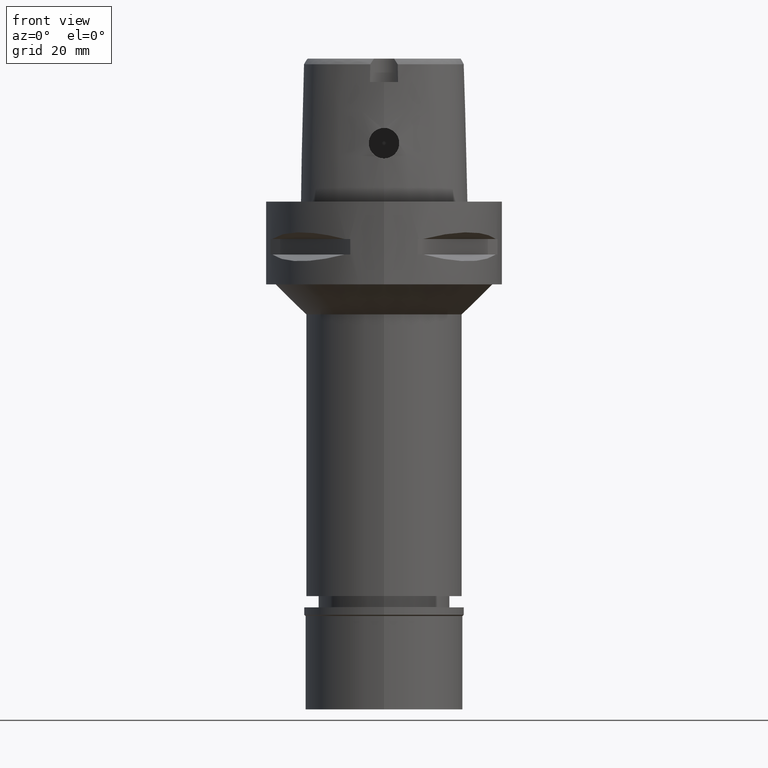
[diagram: clean part render]
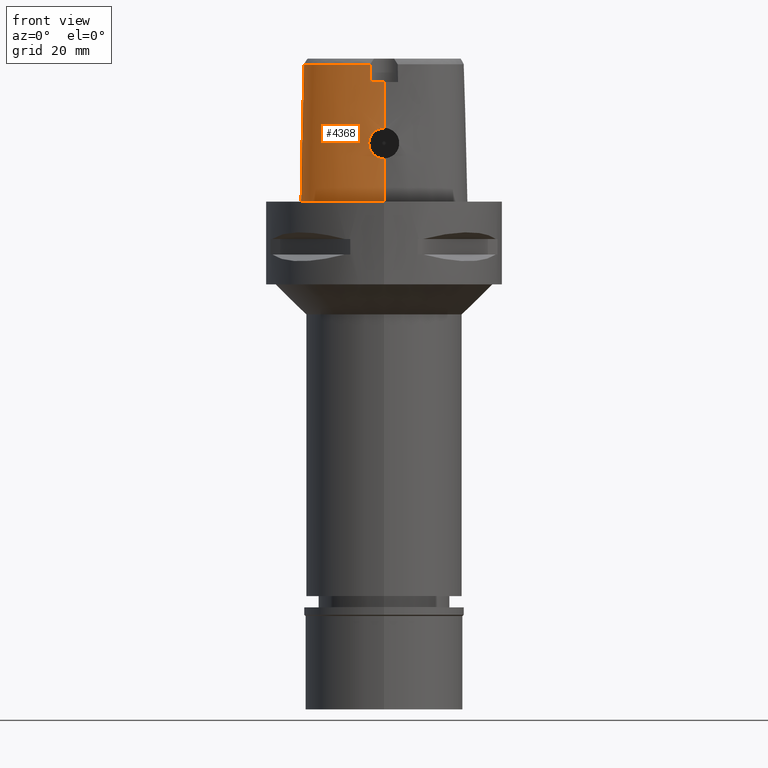
[diagram: same view with one face highlighted and labeled with its STEP entity id]
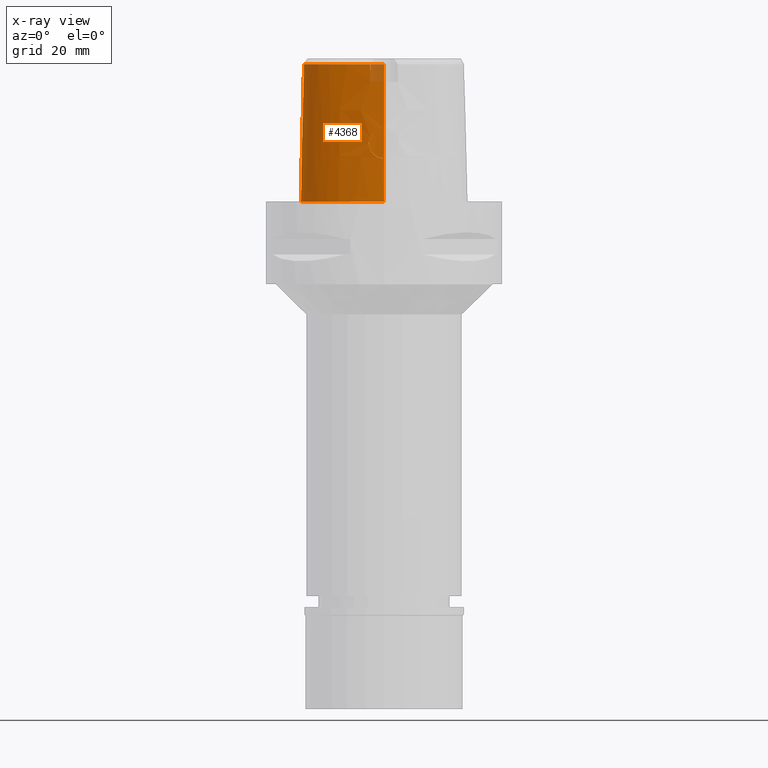
[diagram: x-ray of the same camera — body ghosted, the highlighted face saturated]
A machine part, front view. The second image highlights one B-rep face of the part: STEP entity #4368.
The next image is the same camera in x-ray: the body ghosted, the highlighted face saturated — about 2% of this face is hidden behind the body in this view.
In plain terms, the highlighted face is a freeform B-spline surface patch.
Its self-contained STEP definition (entity closure, byte-faithful):
#25 = EDGE_CURVE ( 'NONE', #266, #937, #47, .T. ) ;
#27 = CARTESIAN_POINT ( 'NONE',  ( -3.215358272887882674, -20.20174660046962600, 13.03391498473814103 ) ) ;
#34 = CARTESIAN_POINT ( 'NONE',  ( 0.6850314002073000230, 22.83959031590000066, 24.59140867373000106 ) ) ;
#38 = CARTESIAN_POINT ( 'NONE',  ( -19.55745547455899214, -11.29150218116220117, 36.52186244848005714 ) ) ;
#46 = CARTESIAN_POINT ( 'NONE',  ( -2.857836109606428199, -20.09902107152585060, 18.36973246307252339 ) ) ;
#47 = B_SPLINE_CURVE_WITH_KNOTS ( 'NONE', 3,
 ( #3482, #2371, #3885, #3111 ),
 .UNSPECIFIED., .F., .F.,
 ( 4, 4 ),
 ( 0.0000000000000000000, 1.000000000000000000 ),
 .UNSPECIFIED. ) ;
#56 = CARTESIAN_POINT ( 'NONE',  ( 0.4441906924275000335, 22.53710754767000068, 37.25233195128999597 ) ) ;
#73 = CARTESIAN_POINT ( 'NONE',  ( -3.724287987559095292, -20.04899117660409757, 17.09139312267861754 ) ) ;
#85 = EDGE_LOOP ( 'NONE', ( #3730, #1971, #912, #466, #2006, #4892, #4291, #3056 ) ) ;
#90 = CARTESIAN_POINT ( 'NONE',  ( -13.70645028111559149, 15.04851272300273735, 36.52186244848005714 ) ) ;
#102 = CARTESIAN_POINT ( 'NONE',  ( -4.001055636210809396, -20.04208398455349638, 16.14154222857777299 ) ) ;
#108 = CARTESIAN_POINT ( 'NONE',  ( -10.34823227286000069, 18.70095486602000179, 24.59140867373000106 ) ) ;
#125 = CARTESIAN_POINT ( 'NONE',  ( -3.377353639916688355, -20.18061854612784956, 13.26476903757044568 ) ) ;
#131 = CARTESIAN_POINT ( 'NONE',  ( -21.68301094094000092, -0.3332744160554000357, 11.93048539615999992 ) ) ;
#164 = CARTESIAN_POINT ( 'NONE',  ( -20.94844326328000150, -10.61175397205000159, -0.7304378813977999707 ) ) ;
#188 = CARTESIAN_POINT ( 'NONE',  ( -19.86834400796999844, 4.339653558540000233, 37.25233195128999597 ) ) ;
#191 = CARTESIAN_POINT ( 'NONE',  ( -22.24453907477161252, -4.100468750021825315, 1.504619045729436305E-07 ) ) ;
#209 = CARTESIAN_POINT ( 'NONE',  ( -6.344715577592999978, -20.31619965466000011, -0.7304378813977999707 ) ) ;
#215 = LINE ( 'NONE', #607, #3267 ) ;
#266 = VERTEX_POINT ( 'NONE', #1766 ) ;
#282 = CARTESIAN_POINT ( 'NONE',  ( 0.6718639799920999023, -20.05378872973999904, 24.59140867373000106 ) ) ;
#295 = CARTESIAN_POINT ( 'NONE',  ( 2.041042029990999821E-08, -19.88004246002000031, 31.80000004972000127 ) ) ;
#306 = CARTESIAN_POINT ( 'NONE',  ( -2.696415149899703767, -20.10825975497923324, 18.52316981035091104 ) ) ;
#307 = CARTESIAN_POINT ( 'NONE',  ( -6.175998541757000027, -19.37631761239999761, 37.25233195128999597 ) ) ;
#331 = CARTESIAN_POINT ( 'NONE',  ( 0.0000000000000000000, -20.18628283968999781, 19.55000000000000071 ) ) ;
#389 = CARTESIAN_POINT ( 'NONE',  ( 0.7042335228124000368, 23.15549812381000194, 11.93048539615999992 ) ) ;
#403 = CARTESIAN_POINT ( 'NONE',  ( -3.788010122578853611, -20.11815763408451829, 14.06624340821270280 ) ) ;
#412 = CARTESIAN_POINT ( 'NONE',  ( 0.4569144469324000202, 22.85341776083999932, 24.59140867373000106 ) ) ;
#417 = CARTESIAN_POINT ( 'NONE',  ( -4.467522189395946697, -19.48130287050814857, 36.52186244848005714 ) ) ;
#427 = CARTESIAN_POINT ( 'NONE',  ( -3.704467467890588228, -20.04996865237292880, 17.13733399074683916 ) ) ;
#446 = CARTESIAN_POINT ( 'NONE',  ( -4.027530768679777218, -20.06783249596160346, 14.99855479655601442 ) ) ;
#455 = CARTESIAN_POINT ( 'NONE',  ( -4.987110639121000055, 22.24795273492999925, 11.93048539615999992 ) ) ;
#466 = ORIENTED_EDGE ( 'NONE', *, *, #4238, .T. ) ;
#472 = CARTESIAN_POINT ( 'NONE',  ( -3.646271025386284226, -20.14180172674242897, 13.73229968810705515 ) ) ;
#488 = B_SPLINE_SURFACE_WITH_KNOTS ( 'NONE', 3, 3, ( 
 ( #4187, #389, #34, #4210 ),
 ( #2767, #2355, #412, #56 ),
 ( #1558, #4667, #2747, #4255 ),
 ( #2021, #824, #1997, #2380 ),
 ( #3894, #455, #3144, #1227 ),
 ( #2405, #3918, #3270, #3170 ),
 ( #4326, #4348, #108, #2892 ),
 ( #2794, #4301, #952, #1663 ),
 ( #4759, #3194, #530, #2144 ),
 ( #2452, #901, #4786, #188 ),
 ( #1332, #131, #922, #2476 ),
 ( #4038, #2867, #2822, #3624 ),
 ( #3991, #4402, #554, #1354 ),
 ( #2118, #983, #1283, #4377 ),
 ( #164, #578, #2523, #1637 ),
 ( #1259, #3572, #879, #4693 ),
 ( #3940, #600, #1715, #4715 ),
 ( #2433, #507, #2042, #1690 ),
 ( #3220, #3961, #2068, #3598 ),
 ( #2093, #4739, #1308, #2842 ),
 ( #3244, #2500, #4014, #3648 ),
 ( #209, #1736, #4426, #307 ),
 ( #2219, #1033, #1060, #4814 ),
 ( #1836, #4088, #3375, #1476 ),
 ( #624, #3773, #282, #3675 ) ),
 .UNSPECIFIED., .F., .F., .F.,
 ( 4, 1, 1, 1, 1, 1, 1, 1, 1, 1, 1, 1, 1, 1, 1, 1, 1, 1, 1, 1, 1, 1, 4 ),
 ( 4, 4 ),
 ( -0.01173777939045999967, 0.0000000000000000000, 0.04166666666736999758, 0.08333333333399001175, 0.1250000000005999923, 0.1666666666673000119, 0.2500000000004999889, 0.3333333333337000215, 0.4166666666670000296, 0.5000000000002999823, 0.5416666666668999985, 0.5833333333335000148, 0.6250000000001000311, 0.6458333333333999837, 0.6666666666667999674, 0.6875000000001000311, 0.7083333333333000637, 0.7500000000000000000, 0.7916666666667000474, 0.8333333333332000326, 0.9166666666664999852, 1.000000000000000000, 1.008985696609000060 ),
 ( -3.919420003828000068E-09, 1.000000199890000108 ),
 .UNSPECIFIED. ) ;
#499 = CARTESIAN_POINT ( 'NONE',  ( -4.049663826248562692, -20.05088590020228168, 15.56119206774791230 ) ) ;
#507 = CARTESIAN_POINT ( 'NONE',  ( -18.35112148866999959, -13.96357030862000137, 11.93048539615999992 ) ) ;
#530 = CARTESIAN_POINT ( 'NONE',  ( -17.53318564118000111, 10.12278921955000044, 24.59140867373000106 ) ) ;
#532 = CARTESIAN_POINT ( 'NONE',  ( -5.098437015879191847, 22.52602538712171309, 1.504619045729436305E-07 ) ) ;
#554 = CARTESIAN_POINT ( 'NONE',  ( -21.44619279530000000, -6.759806531063999202, 24.59140867373000106 ) ) ;
#556 = CARTESIAN_POINT ( 'NONE',  ( -21.97832647413867235, -0.2810937506581301926, 1.504619045729436305E-07 ) ) ;
#578 = CARTESIAN_POINT ( 'NONE',  ( -20.65879041645999692, -10.48283616500000015, 11.93048539615999992 ) ) ;
#600 = CARTESIAN_POINT ( 'NONE',  ( -19.40779762726999991, -12.64961922982999987, 11.93048539615999992 ) ) ;
#607 = CARTESIAN_POINT ( 'NONE',  ( -1.721531780973000088E-11, 22.56201468012000078, 36.52186680743999858 ) ) ;
#618 = CARTESIAN_POINT ( 'NONE',  ( -0.5047993661888190431, -20.38876923348000147, 11.44999999999999929 ) ) ;
#624 = CARTESIAN_POINT ( 'NONE',  ( 0.6840430854536001526, -20.68668155490999894, -0.7304378813977999707 ) ) ;
#629 = CARTESIAN_POINT ( 'NONE',  ( -3.736722311398999796, -19.67781602443999844, 31.80000000000000071 ) ) ;
#630 = B_SPLINE_CURVE_WITH_KNOTS ( 'NONE', 3,
 ( #295, #2609, #4191, #1874 ),
 .UNSPECIFIED., .F., .F.,
 ( 4, 4 ),
 ( 0.0000000000000000000, 1.000000000000000000 ),
 .UNSPECIFIED. ) ;
#675 = CARTESIAN_POINT ( 'NONE',  ( -2.095753548414855505, -20.13818364214428414, 18.96577014705866304 ) ) ;
#731 = EDGE_CURVE ( 'NONE', #1554, #3645, #2927, .T. ) ;
#755 = CARTESIAN_POINT ( 'NONE',  ( -10.15538788053377672, 18.47129535094281749, 36.52186244848005714 ) ) ;
#767 = CARTESIAN_POINT ( 'NONE',  ( -3.698122373792617434, -20.13343971463959647, 13.84482020408002612 ) ) ;
#790 = CARTESIAN_POINT ( 'NONE',  ( -2.945118222696918142, -20.23335776654030127, 12.71958560101020730 ) ) ;
#815 = CARTESIAN_POINT ( 'NONE',  ( -3.294464282139044187, -20.19175818983875814, 13.14063372506621619 ) ) ;
#824 = CARTESIAN_POINT ( 'NONE',  ( -2.503210889261000105, 22.99958931507000059, 11.93048539615999992 ) ) ;
#845 = CARTESIAN_POINT ( 'NONE',  ( -3.732557508995179685, -20.04859144260195336, 17.07180291399460614 ) ) ;
#863 = CARTESIAN_POINT ( 'NONE',  ( -2.376843896516217303, 22.39422508474116569, 36.52186244848005714 ) ) ;
#873 = CARTESIAN_POINT ( 'NONE',  ( -1.572984596531528112, -20.34569619827912490, 11.76794029727381385 ) ) ;
#879 = CARTESIAN_POINT ( 'NONE',  ( -19.81622809966999910, -11.44090462650000006, 24.59140867373000106 ) ) ;
#901 = CARTESIAN_POINT ( 'NONE',  ( -20.46725037192999963, 4.555493623322999674, 11.93048539615999992 ) ) ;
#912 = ORIENTED_EDGE ( 'NONE', *, *, #25, .F. ) ;
#922 = CARTESIAN_POINT ( 'NONE',  ( -21.36961486092999962, -0.3886498167673000381, 24.59140867373000106 ) ) ;
#937 = VERTEX_POINT ( 'NONE', #3909 ) ;
#948 = CARTESIAN_POINT ( 'NONE',  ( -9.433993878921999819E-13, -20.38876923348000147, 11.44999999999999929 ) ) ;
#952 = CARTESIAN_POINT ( 'NONE',  ( -13.93560853424000179, 15.24203780477999892, 24.59140867373000106 ) ) ;
#983 = CARTESIAN_POINT ( 'NONE',  ( -21.26836734944999918, -8.910752225896001022, 11.93048539615999992 ) ) ;
#1000 = LINE ( 'NONE', #2913, #3297 ) ;
#1002 = B_SPLINE_CURVE_WITH_KNOTS ( 'NONE', 3,
 ( #1640, #417, #3174, #3474, #1262, #1158, #4599, #3898, #38, #4260, #3103, #1204, #1923, #1587, #3526, #1181, #90, #755, #3832, #2706, #863, #1562, #2731 ),
 .UNSPECIFIED., .F., .F.,
 ( 4, 1, 1, 1, 1, 1, 1, 1, 1, 1, 1, 1, 1, 1, 1, 1, 1, 1, 1, 1, 4 ),
 ( 0.0000000000000000000, 0.03580973941722127157, 0.1234633994701819781, 0.1672902294965045722, 0.2111170595230376090, 0.2549438895495704793, 0.2768573045626792628, 0.2987707195758931844, 0.3206841345892122441, 0.3425975496024261102, 0.3864243796288538979, 0.4302512096552817411, 0.4740780396817095288, 0.5617316997346701868, 0.6493853597876309003, 0.7370390198404865867, 0.8246926798933421621, 0.8685195099198751434, 0.9123463399463134227, 0.9561731699727623601, 1.000000000000000000 ),
 .UNSPECIFIED. ) ;
#1033 = CARTESIAN_POINT ( 'NONE',  ( -1.870070487718000107, -20.39691384385999839, 11.93048539615999992 ) ) ;
#1060 = CARTESIAN_POINT ( 'NONE',  ( -1.853278682937000044, -20.08023908355999865, 24.59140867373000106 ) ) ;
#1081 = CARTESIAN_POINT ( 'NONE',  ( -2.621021505588482903, -20.11233874864636917, 18.58822781674865610 ) ) ;
#1106 = CARTESIAN_POINT ( 'NONE',  ( -1.768917262173096860, -20.15190475906380030, 19.14568281053183085 ) ) ;
#1150 = CARTESIAN_POINT ( 'NONE',  ( -3.952964639637183364, -20.08622609015915472, 14.60890045227376888 ) ) ;
#1158 = CARTESIAN_POINT ( 'NONE',  ( -16.39211280191454634, -14.95758113318639282, 36.52186244848005714 ) ) ;
#1168 = CARTESIAN_POINT ( 'NONE',  ( -3.388781880796849943, -20.17907268769688756, 13.28211842279059418 ) ) ;
#1181 = CARTESIAN_POINT ( 'NONE',  ( -17.27359245833560664, 9.972912913898975162, 36.52186244848005714 ) ) ;
#1193 = CARTESIAN_POINT ( 'NONE',  ( -3.024127618929793204, -20.22444760030290212, 12.80466032897618867 ) ) ;
#1204 = CARTESIAN_POINT ( 'NONE',  ( -21.14970188364109305, -6.717195958887428375, 36.52186244848005714 ) ) ;
#1220 = CARTESIAN_POINT ( 'NONE',  ( -4.048193638326212707, -20.04945813672254573, 15.62509932612366192 ) ) ;
#1227 = CARTESIAN_POINT ( 'NONE',  ( -4.750826081388000333, 21.65775771057999677, 37.25233195128999597 ) ) ;
#1248 = CARTESIAN_POINT ( 'NONE',  ( -1.638635025837253512, -20.34200884320549818, 11.79610711465309691 ) ) ;
#1259 = CARTESIAN_POINT ( 'NONE',  ( -20.36546124951000181, -11.75800453459999950, -0.7304378813977999707 ) ) ;
#1262 = CARTESIAN_POINT ( 'NONE',  ( -14.22011356155923245, -16.41829364186103390, 36.52186244848005714 ) ) ;
#1283 = CARTESIAN_POINT ( 'NONE',  ( -20.96392230142999935, -8.820258255164000971, 24.59140867373000106 ) ) ;
#1303 = CARTESIAN_POINT ( 'NONE',  ( -1.035503055405530448, -20.37488775911208805, 11.54570873351892146 ) ) ;
#1308 = CARTESIAN_POINT ( 'NONE',  ( -14.36818021763999909, -16.67825709865999784, 24.59140867373000106 ) ) ;
#1310 = CARTESIAN_POINT ( 'NONE',  ( -10.74572890816407700, 19.17433593460787122, 1.504619045729436305E-07 ) ) ;
#1332 = CARTESIAN_POINT ( 'NONE',  ( -21.99640702093999778, -0.2778990153436000088, -0.7304378813977999707 ) ) ;
#1354 = CARTESIAN_POINT ( 'NONE',  ( -21.13154854489000201, -6.714587028492999821, 37.25233195128999597 ) ) ;
#1363 = VERTEX_POINT ( 'NONE', #629 ) ;
#1384 = CARTESIAN_POINT ( 'NONE',  ( -2.113823672840903445, -20.67499999624136109, 1.504619045729436305E-07 ) ) ;
#1455 = CARTESIAN_POINT ( 'NONE',  ( -2.841055161952163122, -20.10000556631501922, 18.38634273630945870 ) ) ;
#1476 = CARTESIAN_POINT ( 'NONE',  ( 0.4439216872676999825, -19.74161819213000157, 37.25233195128999597 ) ) ;
#1551 = CARTESIAN_POINT ( 'NONE',  ( -2.421503357381106447, -20.28648737493520215, 12.24279215500414075 ) ) ;
#1554 = VERTEX_POINT ( 'NONE', #4018 ) ;
#1558 = CARTESIAN_POINT ( 'NONE',  ( -0.6149727129597999387, 23.51889465434000215, -0.7304378813977999707 ) ) ;
#1562 = CARTESIAN_POINT ( 'NONE',  ( -0.7901461696973979265, 22.56201478746753253, 36.52186244848005714 ) ) ;
#1571 = CARTESIAN_POINT ( 'NONE',  ( -3.862607746693166089, -20.10460055501438603, 14.28038032243066624 ) ) ;
#1587 = CARTESIAN_POINT ( 'NONE',  ( -21.07430010673236964, -0.4408303445192785497, 36.52186244848005714 ) ) ;
#1600 = CARTESIAN_POINT ( 'NONE',  ( -2.875757950340811053, -20.24102512592879322, 12.64823125461289166 ) ) ;
#1630 = CARTESIAN_POINT ( 'NONE',  ( -3.649474620159720128, -20.05281468735726591, 17.25706831817002040 ) ) ;
#1637 = CARTESIAN_POINT ( 'NONE',  ( -20.07948472281999841, -10.22500055090999993, 37.25233195128999597 ) ) ;
#1640 = CARTESIAN_POINT ( 'NONE',  ( -3.637738201363999835, -19.56971413236999879, 36.52186244848000030 ) ) ;
#1654 = CARTESIAN_POINT ( 'NONE',  ( -3.474550157058655220, -20.06258684786187985, 17.58509941785007413 ) ) ;
#1663 = CARTESIAN_POINT ( 'NONE',  ( -13.69241953941999945, 15.03666370426999954, 37.25233195128999597 ) ) ;
#1690 = CARTESIAN_POINT ( 'NONE',  ( -17.88993632692000091, -13.52674998788999972, 37.25233195128999597 ) ) ;
#1709 = CARTESIAN_POINT ( 'NONE',  ( -9.433993878921999819E-13, -20.38876923348000147, 11.44999999999999929 ) ) ;
#1715 = CARTESIAN_POINT ( 'NONE',  ( -19.15132510419000056, -12.46323140994999967, 24.59140867373000106 ) ) ;
#1718 = CARTESIAN_POINT ( 'NONE',  ( -22.05732873948249306, -6.847636718212593898, 1.504619045729436305E-07 ) ) ;
#1736 = CARTESIAN_POINT ( 'NONE',  ( -6.288476565647999728, -20.00290564056999898, 11.93048539615999992 ) ) ;
#1766 = CARTESIAN_POINT ( 'NONE',  ( 2.041042029990999821E-08, -19.88004246002000031, 31.80000004972000127 ) ) ;
#1805 = DIRECTION ( 'NONE',  ( -5.771735079090829379E-13, -0.02499051295389925070, -0.9996876883618708298 ) ) ;
#1836 = CARTESIAN_POINT ( 'NONE',  ( 0.4560943670751999579, -20.69106768984000055, -0.7304378813977999707 ) ) ;
#1862 = CARTESIAN_POINT ( 'NONE',  ( -1.320565687276262112, -20.16697761691574087, 19.32976498245970376 ) ) ;
#1874 = CARTESIAN_POINT ( 'NONE',  ( -3.736722311398999796, -19.67781602443999844, 31.80000000000000071 ) ) ;
#1881 = CARTESIAN_POINT ( 'NONE',  ( -1.222079501498650744, -20.16967619644332288, 19.36182732690445008 ) ) ;
#1908 = CARTESIAN_POINT ( 'NONE',  ( -1.533377486156251468, -20.16026360294687336, 19.24851053760685460 ) ) ;
#1923 = CARTESIAN_POINT ( 'NONE',  ( -21.32871527669585987, -4.105831244394305024, 36.52186244848005714 ) ) ;
#1935 = CARTESIAN_POINT ( 'NONE',  ( -3.744859968352565183, -20.12555785049274704, 13.95773689203759460 ) ) ;
#1959 = CARTESIAN_POINT ( 'NONE',  ( -3.848403410397716939, -20.04310851184499143, 16.79149714040717001 ) ) ;
#1971 = ORIENTED_EDGE ( 'NONE', *, *, #3374, .F. ) ;
#1987 = CARTESIAN_POINT ( 'NONE',  ( -2.870809693610167468, -20.24156730632852685, 12.64324605246983602 ) ) ;
#1997 = CARTESIAN_POINT ( 'NONE',  ( -2.438150571704999603, 22.68791624126000173, 24.59140867373000106 ) ) ;
#2006 = ORIENTED_EDGE ( 'NONE', *, *, #2796, .F. ) ;
#2014 = CARTESIAN_POINT ( 'NONE',  ( -3.765489374950850010, -20.12204791086956845, 14.00864527312965357 ) ) ;
#2021 = CARTESIAN_POINT ( 'NONE',  ( -2.568271206816000074, 23.31126238887000213, -0.7304378813977999707 ) ) ;
#2036 = CARTESIAN_POINT ( 'NONE',  ( -1.812541018711632201, -20.33144879143526396, 11.87771303032950243 ) ) ;
#2042 = CARTESIAN_POINT ( 'NONE',  ( -18.12052890779999714, -13.74516014825000099, 24.59140867373000106 ) ) ;
#2068 = CARTESIAN_POINT ( 'NONE',  ( -16.57726025333999686, -15.19304450893999991, 24.59140867373000106 ) ) ;
#2093 = CARTESIAN_POINT ( 'NONE',  ( -14.68244497370000090, -17.23001773469000142, -0.7304378813977999707 ) ) ;
#2118 = CARTESIAN_POINT ( 'NONE',  ( -21.57281239747999990, -9.001246196628999385, -0.7304378813977999707 ) ) ;
#2144 = CARTESIAN_POINT ( 'NONE',  ( -17.25769826799000128, 9.963736391988000207, 37.25233195128999597 ) ) ;
#2198 = CARTESIAN_POINT ( 'NONE',  ( -1.543048130381288630, -20.15993798682083948, 19.24453660913574637 ) ) ;
#2219 = CARTESIAN_POINT ( 'NONE',  ( -1.886862292498999949, -20.71358860416999903, -0.7304378813977999707 ) ) ;
#2220 = CARTESIAN_POINT ( 'NONE',  ( -7.554100652393000659E-12, -20.67499999999999716, 5.806466418789999109E-14 ) ) ;
#2267 = CARTESIAN_POINT ( 'NONE',  ( -1.517038990534186338, -20.16080850842839922, 19.25515252244158759 ) ) ;
#2292 = CARTESIAN_POINT ( 'NONE',  ( -1.025211814385345921, -20.17465818941732891, 19.42048404905330017 ) ) ;
#2301 = FACE_OUTER_BOUND ( 'NONE', #85, .T. ) ;
#2318 = CARTESIAN_POINT ( 'NONE',  ( -3.520475118946975179, -20.16064927175088783, 13.49656734865700969 ) ) ;
#2322 = VERTEX_POINT ( 'NONE', #1709 ) ;
#2346 = CARTESIAN_POINT ( 'NONE',  ( -3.258446753581196287, -20.07522384658358661, 17.91983021284886490 ) ) ;
#2355 = CARTESIAN_POINT ( 'NONE',  ( 0.4696382014372000313, 23.16972797400999795, 11.93048539615999992 ) ) ;
#2371 = CARTESIAN_POINT ( 'NONE',  ( 6.820967334231694887E-09, -19.98212988583717120, 27.71666688228249953 ) ) ;
#2374 = CARTESIAN_POINT ( 'NONE',  ( -3.466483550186857610, -20.16833646136317881, 13.40542637771265788 ) ) ;
#2380 = CARTESIAN_POINT ( 'NONE',  ( -2.373090254149999634, 22.37624316744999931, 37.25233195128999597 ) ) ;
#2396 = CARTESIAN_POINT ( 'NONE',  ( -3.538328569005044777, -20.05892019842456619, 17.47427695038981810 ) ) ;
#2405 = CARTESIAN_POINT ( 'NONE',  ( -7.580410842713000363, 21.33037926727000055, -0.7304378813977999707 ) ) ;
#2426 = CARTESIAN_POINT ( 'NONE',  ( -1.559921522258048476, -20.34641501698343191, 11.76246137009471759 ) ) ;
#2429 = CARTESIAN_POINT ( 'NONE',  ( -3.736722311398999796, -19.67781602443999844, 31.80000000000000071 ) ) ;
#2433 = CARTESIAN_POINT ( 'NONE',  ( -18.58171406954999938, -14.18198046898999998, -0.7304378813977999707 ) ) ;
#2450 = CARTESIAN_POINT ( 'NONE',  ( -3.704239276368590961, -19.64128040965313460, 33.37395414949332917 ) ) ;
#2452 = CARTESIAN_POINT ( 'NONE',  ( -20.76670355391000200, 4.663413655714999884, -0.7304378813977999707 ) ) ;
#2476 = CARTESIAN_POINT ( 'NONE',  ( -21.05621878092999921, -0.4440252174791000095, 37.25233195128999597 ) ) ;
#2478 = CARTESIAN_POINT ( 'NONE',  ( -20.74942740523708196, 4.657187498717557439, 1.504619045729436305E-07 ) ) ;
#2500 = CARTESIAN_POINT ( 'NONE',  ( -11.13012652986000006, -18.61140108976999841, 11.93048539615999992 ) ) ;
#2523 = CARTESIAN_POINT ( 'NONE',  ( -20.36913756963999944, -10.35391835795999960, 24.59140867373000106 ) ) ;
#2529 = DIRECTION ( 'NONE',  ( 1.720264183761959277E-12, 0.02499051290962944413, -0.9996876883629776112 ) ) ;
#2547 = CARTESIAN_POINT ( 'NONE',  ( -19.64947365559536507, -12.82525390403092125, 1.504619045729436305E-07 ) ) ;
#2566 = CARTESIAN_POINT ( 'NONE',  ( -2.218923952810186506, -20.13252298611806523, 18.88809933005988029 ) ) ;
#2570 = CARTESIAN_POINT ( 'NONE',  ( -20.34961798230877150, -11.74885741998214073, 1.504619045729436305E-07 ) ) ;
#2608 = CARTESIAN_POINT ( 'NONE',  ( -3.637738201363999835, -19.56971413236999879, 36.52186244848000030 ) ) ;
#2609 = CARTESIAN_POINT ( 'NONE',  ( -1.251533273949508196, -19.88005341379811597, 31.80000012753029281 ) ) ;
#2687 = VERTEX_POINT ( 'NONE', #2608 ) ;
#2694 = CARTESIAN_POINT ( 'NONE',  ( -3.738021026999548635, -20.04832921641929744, 17.05876513949583639 ) ) ;
#2706 = CARTESIAN_POINT ( 'NONE',  ( -4.757642277159207289, 21.67478330407502085, 36.52186244848005714 ) ) ;
#2718 = CARTESIAN_POINT ( 'NONE',  ( -2.647727988101651331, -20.26593689667720355, 12.42012271608010643 ) ) ;
#2731 = CARTESIAN_POINT ( 'NONE',  ( -1.721531780973000088E-11, 22.56201468012000078, 36.52186680743999858 ) ) ;
#2741 = CARTESIAN_POINT ( 'NONE',  ( -3.438474044887641412, -20.17226853620277893, 13.35950353148250436 ) ) ;
#2747 = CARTESIAN_POINT ( 'NONE',  ( -0.5821289155859000752, 22.88453073699000129, 24.59140867373000106 ) ) ;
#2762 = CARTESIAN_POINT ( 'NONE',  ( -3.089131642920631471, -20.21685897408096722, 12.88004451868197009 ) ) ;
#2763 = VERTEX_POINT ( 'NONE', #4613 ) ;
#2767 = CARTESIAN_POINT ( 'NONE',  ( 0.4823619559421000180, 23.48603818717999658, -0.7304378813977999707 ) ) ;
#2787 = CARTESIAN_POINT ( 'NONE',  ( -1.592612062465135647, -20.34460894491116889, 11.77623291199209810 ) ) ;
#2794 = CARTESIAN_POINT ( 'NONE',  ( -14.42198652389999936, 15.65278600578999857, -0.7304378813977999707 ) ) ;
#2796 = EDGE_CURVE ( 'NONE', #2687, #1363, #3222, .T. ) ;
#2822 = CARTESIAN_POINT ( 'NONE',  ( -21.62788385138999914, -4.104079499352000227, 24.59140867373000106 ) ) ;
#2842 = CARTESIAN_POINT ( 'NONE',  ( -14.21104783960999995, -16.40237678063999738, 37.25233195128999597 ) ) ;
#2843 = CARTESIAN_POINT ( 'NONE',  ( -14.40795638669283107, 15.64093749755124740, 1.504619045729436305E-07 ) ) ;
#2867 = CARTESIAN_POINT ( 'NONE',  ( -21.94536971092000144, -4.102220499685000021, 11.93048539615999992 ) ) ;
#2892 = CARTESIAN_POINT ( 'NONE',  ( -10.14358053858000019, 18.45723391832999738, 37.25233195128999597 ) ) ;
#2913 = CARTESIAN_POINT ( 'NONE',  ( -9.433993878921999819E-13, -20.38876923348000147, 11.44999999999999929 ) ) ;
#2927 = B_SPLINE_CURVE_WITH_KNOTS ( 'NONE', 3,
 ( #4327, #3963, #3224, #532, #4740, #1310, #2843, #4349, #2478, #556, #191, #1718, #3245, #4762, #2570, #2547, #4092, #3750, #3299, #4842, #4159, #1384, #2220 ),
 .UNSPECIFIED., .F., .F.,
 ( 4, 1, 1, 1, 1, 1, 1, 1, 1, 1, 1, 1, 1, 1, 1, 1, 1, 1, 1, 1, 4 ),
 ( 0.0000000000000000000, 0.04166666666736999758, 0.08333333333399001175, 0.1250000000005999923, 0.1666666666673000119, 0.2500000000004999889, 0.3333333333337000215, 0.4166666666670000296, 0.5000000000002999823, 0.5416666666668999985, 0.5833333333335000148, 0.6250000000001000311, 0.6458333333333999837, 0.6666666666667999674, 0.6875000000001000311, 0.7083333333333000637, 0.7500000000000000000, 0.7916666666667000474, 0.8333333333332000326, 0.9166666666664999852, 1.000000000000000000 ),
 .UNSPECIFIED. ) ;
#2969 = CARTESIAN_POINT ( 'NONE',  ( -2.236225399044929674, -20.13170464962382766, 18.87669531694418623 ) ) ;
#3056 = ORIENTED_EDGE ( 'NONE', *, *, #731, .T. ) ;
#3087 = CARTESIAN_POINT ( 'NONE',  ( -3.081149392577404278, -20.08583124627778460, 18.14629112890300888 ) ) ;
#3103 = CARTESIAN_POINT ( 'NONE',  ( -20.67704215115603006, -8.734985316448923953, 36.52186244848005714 ) ) ;
#3111 = CARTESIAN_POINT ( 'NONE',  ( 0.0000000000000000000, -20.18628283968999781, 19.55000000000000071 ) ) ;
#3114 = CARTESIAN_POINT ( 'NONE',  ( -4.044848056823783011, -20.04744994059091923, 15.72117637690715419 ) ) ;
#3137 = CARTESIAN_POINT ( 'NONE',  ( -1.758544761671920087, -20.33485355119335125, 11.85123508312393703 ) ) ;
#3140 = CARTESIAN_POINT ( 'NONE',  ( -3.637738201363999835, -19.56971413236999879, 36.52186244848000030 ) ) ;
#3144 = CARTESIAN_POINT ( 'NONE',  ( -4.868968360253999705, 21.95285522274999934, 24.59140867373000106 ) ) ;
#3164 = CARTESIAN_POINT ( 'NONE',  ( -4.019649019913003940, -20.04316019033984730, 16.01163126943011505 ) ) ;
#3170 = CARTESIAN_POINT ( 'NONE',  ( -7.099337607920999993, 20.50831361912999640, 37.25233195128999597 ) ) ;
#3174 = CARTESIAN_POINT ( 'NONE',  ( -7.300578999877331832, -19.07170748892163914, 36.52186244848005714 ) ) ;
#3186 = CARTESIAN_POINT ( 'NONE',  ( -4.038031914720375148, -20.04584209172325870, 15.81781984753358472 ) ) ;
#3194 = CARTESIAN_POINT ( 'NONE',  ( -17.80867301438000183, 10.28184204710999872, 11.93048539615999992 ) ) ;
#3220 = CARTESIAN_POINT ( 'NONE',  ( -16.97022731422999797, -15.69280483513000135, -0.7304378813977999707 ) ) ;
#3222 = B_SPLINE_CURVE_WITH_KNOTS ( 'NONE', 3,
 ( #3140, #3869, #2450, #2429 ),
 .UNSPECIFIED., .F., .F.,
 ( 4, 4 ),
 ( 0.0000000000000000000, 1.000000000000000000 ),
 .UNSPECIFIED. ) ;
#3224 = CARTESIAN_POINT ( 'NONE',  ( -2.564517726183881408, 23.29328124629300234, 1.504619045729436305E-07 ) ) ;
#3244 = CARTESIAN_POINT ( 'NONE',  ( -11.23887130425999992, -18.91049776491999879, -0.7304378813977999707 ) ) ;
#3245 = CARTESIAN_POINT ( 'NONE',  ( -21.55524825647565024, -8.996025389549746620, 1.504619045729436305E-07 ) ) ;
#3267 = VECTOR ( 'NONE', #2529, 999.9999999999998863 ) ;
#3270 = CARTESIAN_POINT ( 'NONE',  ( -7.259695352851999850, 20.78233550183999867, 24.59140867373000106 ) ) ;
#3297 = VECTOR ( 'NONE', #1805, 1000.000000000000114 ) ;
#3299 = CARTESIAN_POINT ( 'NONE',  ( -14.67337964233091263, -17.21410155921854823, 1.504619045729436305E-07 ) ) ;
#3346 = CARTESIAN_POINT ( 'NONE',  ( -2.141634863663411714, -20.13611892945429105, 18.93776449056395705 ) ) ;
#3374 = EDGE_CURVE ( 'NONE', #937, #2322, #4589, .T. ) ;
#3375 = CARTESIAN_POINT ( 'NONE',  ( 0.4479792472035999951, -20.05810135803000094, 24.59140867373000106 ) ) ;
#3401 = CARTESIAN_POINT ( 'NONE',  ( -1.435263460293921378, -20.16346600381252330, 19.28743623777243599 ) ) ;
#3417 = CARTESIAN_POINT ( 'NONE',  ( -1.944872162933183768, -20.14473830020670775, 19.05307826098763258 ) ) ;
#3437 = CARTESIAN_POINT ( 'NONE',  ( -0.8941136475798105998, -20.17742596329177474, 19.45229334933474874 ) ) ;
#3463 = CARTESIAN_POINT ( 'NONE',  ( -2.852856104025951023, -20.09931387729061214, 18.37467926461776102 ) ) ;
#3474 = CARTESIAN_POINT ( 'NONE',  ( -10.91891098965117557, -18.03046406390430079, 36.52186244848005714 ) ) ;
#3482 = CARTESIAN_POINT ( 'NONE',  ( 2.041042029990999821E-08, -19.88004246002000031, 31.80000004972000127 ) ) ;
#3485 = CARTESIAN_POINT ( 'NONE',  ( -4.049848995936176976, -20.05861656952050254, 15.25314035234744736 ) ) ;
#3511 = CARTESIAN_POINT ( 'NONE',  ( -1.975954942185763175, -20.32065689222553573, 11.96260358355481124 ) ) ;
#3526 = CARTESIAN_POINT ( 'NONE',  ( -19.88562090098644219, 4.345879983791650858, 36.52186244848005714 ) ) ;
#3538 = CARTESIAN_POINT ( 'NONE',  ( -3.686560471764692704, -20.05088322548417423, 17.17709135335520898 ) ) ;
#3566 = CARTESIAN_POINT ( 'NONE',  ( -1.554881956804951226, -20.34669101430225169, 11.76035872671678462 ) ) ;
#3572 = CARTESIAN_POINT ( 'NONE',  ( -20.09084467458999868, -11.59945458054999889, 11.93048539615999992 ) ) ;
#3598 = CARTESIAN_POINT ( 'NONE',  ( -16.38077672289000120, -14.94316434584000142, 37.25233195128999597 ) ) ;
#3624 = CARTESIAN_POINT ( 'NONE',  ( -21.31039799186000039, -4.105938499017999455, 37.25233195128999597 ) ) ;
#3645 = VERTEX_POINT ( 'NONE', #3777 ) ;
#3648 = CARTESIAN_POINT ( 'NONE',  ( -10.91263698106999946, -18.01320773948000209, 37.25233195128999597 ) ) ;
#3675 = CARTESIAN_POINT ( 'NONE',  ( 0.6657744272612999836, -19.73734231715999599, 37.25233195128999597 ) ) ;
#3727 = CARTESIAN_POINT ( 'NONE',  ( -2.004675599390210561, -20.14220382833396883, 19.01976680093375194 ) ) ;
#3730 = ORIENTED_EDGE ( 'NONE', *, *, #3889, .F. ) ;
#3747 = CARTESIAN_POINT ( 'NONE',  ( -2.467128207655710614, -20.12044499745018555, 18.71456023906526056 ) ) ;
#3750 = CARTESIAN_POINT ( 'NONE',  ( -16.95889172360037023, -15.67838866890467564, 1.504619045729436305E-07 ) ) ;
#3773 = CARTESIAN_POINT ( 'NONE',  ( 0.6779535327227999009, -20.37023514233000299, 11.93048539615999992 ) ) ;
#3777 = CARTESIAN_POINT ( 'NONE',  ( -7.554100652393000659E-12, -20.67499999999999716, 5.806466418789999109E-14 ) ) ;
#3797 = CARTESIAN_POINT ( 'NONE',  ( -1.656252726929899222, -20.15609978928698709, 19.19765142506411948 ) ) ;
#3832 = CARTESIAN_POINT ( 'NONE',  ( -7.108589416785451753, 20.52412325828776218, 36.52186244848005714 ) ) ;
#3843 = CARTESIAN_POINT ( 'NONE',  ( -3.830499027160743086, -20.11062698623123524, 14.18153512545001149 ) ) ;
#3866 = CARTESIAN_POINT ( 'NONE',  ( -3.755562140673626370, -20.12374194796139193, 13.98397501487714045 ) ) ;
#3869 = CARTESIAN_POINT ( 'NONE',  ( -3.671249123513567802, -19.60525173594972514, 34.94790829898666829 ) ) ;
#3885 = CARTESIAN_POINT ( 'NONE',  ( 6.840933290501420598E-09, -20.08420636276543547, 23.63333344114123236 ) ) ;
#3888 = CARTESIAN_POINT ( 'NONE',  ( -2.887412005234532675, -20.23974548682602048, 12.66003157092501930 ) ) ;
#3889 = EDGE_CURVE ( 'NONE', #2322, #3645, #1000, .T. ) ;
#3894 = CARTESIAN_POINT ( 'NONE',  ( -5.105252917987000316, 22.54305024710000183, -0.7304378813977999707 ) ) ;
#3898 = CARTESIAN_POINT ( 'NONE',  ( -18.90964971338160083, -12.28759719904876491, 36.52186244848005714 ) ) ;
#3909 = CARTESIAN_POINT ( 'NONE',  ( 0.0000000000000000000, -20.18628283968999781, 19.55000000000000071 ) ) ;
#3910 = CARTESIAN_POINT ( 'NONE',  ( -3.740129524201758482, -20.04822853724978771, 17.05370687140962715 ) ) ;
#3918 = CARTESIAN_POINT ( 'NONE',  ( -7.420053097781999618, 21.05635738456000183, 11.93048539615999992 ) ) ;
#3933 = CARTESIAN_POINT ( 'NONE',  ( -3.921269265875853449, -20.09311890564765690, 14.47775228275581050 ) ) ;
#3940 = CARTESIAN_POINT ( 'NONE',  ( -19.66427015036000014, -12.83600704969999917, -0.7304378813977999707 ) ) ;
#3961 = CARTESIAN_POINT ( 'NONE',  ( -16.77374378378999964, -15.44292467202999930, 11.93048539615999992 ) ) ;
#3963 = CARTESIAN_POINT ( 'NONE',  ( -0.8548392420371653255, 23.47499999624032085, 1.504619045729436305E-07 ) ) ;
#3991 = CARTESIAN_POINT ( 'NONE',  ( -22.07548129613000043, -6.850245536206000629, -0.7304378813977999707 ) ) ;
#4014 = CARTESIAN_POINT ( 'NONE',  ( -11.02138175546999932, -18.31230441463000247, 24.59140867373000106 ) ) ;
#4018 = CARTESIAN_POINT ( 'NONE',  ( 4.563156939745000540E-11, 23.47499999999000053, 5.514107688971999147E-14 ) ) ;
#4038 = CARTESIAN_POINT ( 'NONE',  ( -22.26285557044000285, -4.100361500019000793, -0.7304378813977999707 ) ) ;
#4086 = CARTESIAN_POINT ( 'NONE',  ( -2.781497320434851872, -20.10345565782015953, 18.44409576488488511 ) ) ;
#4088 = CARTESIAN_POINT ( 'NONE',  ( 0.4520368071393999765, -20.37458452394000119, 11.93048539615999992 ) ) ;
#4092 = CARTESIAN_POINT ( 'NONE',  ( -18.56841064868196511, -14.16937988021922834, 1.504619045729436305E-07 ) ) ;
#4113 = CARTESIAN_POINT ( 'NONE',  ( -0.2473412322782371497, -20.18628283968999781, 19.54999999999999716 ) ) ;
#4159 = CARTESIAN_POINT ( 'NONE',  ( -6.341471018543137106, -20.29812499627781719, 1.504619045729436305E-07 ) ) ;
#4187 = CARTESIAN_POINT ( 'NONE',  ( 0.7234356454175000506, 23.47140593173000056, -0.7304378813977999707 ) ) ;
#4191 = CARTESIAN_POINT ( 'NONE',  ( -2.503154198992585400, -19.81241979316231649, 31.80000012753029281 ) ) ;
#4201 = CARTESIAN_POINT ( 'NONE',  ( -3.925407708630973769, -20.04099055260219941, 16.53138977182821279 ) ) ;
#4210 = CARTESIAN_POINT ( 'NONE',  ( 0.6658292776022001203, 22.52368250797999849, 37.25233195128999597 ) ) ;
#4225 = CARTESIAN_POINT ( 'NONE',  ( -2.086814383340542811, -20.31269213283842490, 12.02647857451394664 ) ) ;
#4238 = EDGE_CURVE ( 'NONE', #266, #1363, #630, .T. ) ;
#4247 = CARTESIAN_POINT ( 'NONE',  ( -3.623054736480679772, -20.05423874947347684, 17.31100359227538732 ) ) ;
#4255 = CARTESIAN_POINT ( 'NONE',  ( -0.5657070168989999370, 22.56734877831000219, 37.25233195128999597 ) ) ;
#4260 = CARTESIAN_POINT ( 'NONE',  ( -20.09619618740798330, -10.23243843868126035, 36.52186244848005714 ) ) ;
#4270 = CARTESIAN_POINT ( 'NONE',  ( -3.408875187705912246, -20.17633333109255744, 13.31312751153962104 ) ) ;
#4291 = ORIENTED_EDGE ( 'NONE', *, *, #4760, .T. ) ;
#4295 = CARTESIAN_POINT ( 'NONE',  ( -4.050018014422888335, -20.05167593067618981, 15.52805627100407015 ) ) ;
#4301 = CARTESIAN_POINT ( 'NONE',  ( -14.17879752906999968, 15.44741190528999830, 11.93048539615999992 ) ) ;
#4326 = CARTESIAN_POINT ( 'NONE',  ( -10.75753574141999813, 19.18839676141000083, -0.7304378813977999707 ) ) ;
#4327 = CARTESIAN_POINT ( 'NONE',  ( 4.563156939745000540E-11, 23.47499999999000053, 5.514107688971999147E-14 ) ) ;
#4348 = CARTESIAN_POINT ( 'NONE',  ( -10.55288400714000119, 18.94467581370999909, 11.93048539615999992 ) ) ;
#4349 = CARTESIAN_POINT ( 'NONE',  ( -18.06826688199668496, 10.43171874811289790, 1.504619045729436305E-07 ) ) ;
#4368 = ADVANCED_FACE ( 'NONE', ( #2301 ), #488, .T. ) ;
#4377 = CARTESIAN_POINT ( 'NONE',  ( -20.65947725339999863, -8.729764284431000831, 37.25233195128999597 ) ) ;
#4402 = CARTESIAN_POINT ( 'NONE',  ( -21.76083704572000244, -6.805026033635000360, 11.93048539615999992 ) ) ;
#4426 = CARTESIAN_POINT ( 'NONE',  ( -6.232237553702000277, -19.68961162648999874, 24.59140867373000106 ) ) ;
#4485 = CARTESIAN_POINT ( 'NONE',  ( -2.360389010911049912, -20.12578017861218882, 18.79373387522194960 ) ) ;
#4533 = CARTESIAN_POINT ( 'NONE',  ( -1.492522727690083206, -20.16161937968068329, 19.26502569008682642 ) ) ;
#4589 = B_SPLINE_CURVE_WITH_KNOTS ( 'NONE', 3,
 ( #331, #4113, #4930, #3437, #2292, #1881, #1862, #3401, #4533, #2267, #1908, #2198, #3797, #1106, #3417, #3727, #675, #3346, #4865, #2566, #2969, #4485, #3747, #1081, #306, #4086, #4889, #1455, #3463, #46, #3087, #2346, #1654, #2396, #4247, #1630, #3538, #427, #73, #845, #2694, #3910, #1959, #4201, #102, #3164, #3186, #3114, #1220, #499, #4295, #3485, #446, #1150, #3933, #1571, #3843, #403, #2014, #3866, #4631, #1935, #767, #472, #4685, #2318, #2374, #2741, #4270, #1168, #125, #815, #27, #2762, #1193, #790, #4609, #3888, #1600, #1987, #2718, #1551, #4225, #3511, #2036, #3137, #4658, #1248, #2787, #873, #2426, #3566, #1303, #618, #948 ),
 .UNSPECIFIED., .F., .F.,
 ( 4, 2, 2, 1, 1, 1, 2, 2, 2, 2, 1, 2, 2, 2, 1, 1, 1, 2, 2, 2, 2, 2, 1, 1, 2, 2, 2, 2, 1, 2, 2, 2, 2, 1, 1, 1, 2, 2, 2, 2, 1, 2, 2, 2, 1, 1, 1, 2, 2, 2, 2, 2, 1, 1, 2, 2, 4 ),
 ( 0.0000000000000000000, 0.06249999999999462930, 0.09374999999999196476, 0.1093749999999905631, 0.1171874999999898415, 0.1210937499999894945, 0.1230468749999891614, 0.1249999999999888284, 0.1562499999999822642, 0.1718749999999787670, 0.1796874999999772127, 0.1835937499999763800, 0.1874999999999755473, 0.2187499999999719669, 0.2343749999999701628, 0.2421874999999695521, 0.2460937499999689415, 0.2480468749999686084, 0.2499999999999682754, 0.3124999999999573674, 0.3437499999999519273, 0.3593749999999495959, 0.3671874999999479861, 0.3710937499999472089, 0.3730468749999472644, 0.3749999999999473199, 0.4374999999999498734, 0.4687499999999511502, 0.4843749999999518163, 0.4921874999999525380, 0.4999999999999532596, 0.5624999999999610312, 0.5937499999999650280, 0.6093749999999671374, 0.6171874999999682476, 0.6210937499999688027, 0.6230468749999689138, 0.6249999999999689138, 0.6562499999999720224, 0.6718749999999735767, 0.6796874999999743538, 0.6835937499999745759, 0.6874999999999747979, 0.7187499999999760192, 0.7343749999999764633, 0.7421874999999766853, 0.7460937499999767963, 0.7480468749999767963, 0.7499999999999767963, 0.8124999999999825695, 0.8437499999999853451, 0.8593749999999866773, 0.8671874999999873435, 0.8710937499999876765, 0.8730468749999878986, 0.8749999999999882316, 1.000000000000000000 ),
 .UNSPECIFIED. ) ;
#4599 = CARTESIAN_POINT ( 'NONE',  ( -17.90324032096643236, -13.53935111955705040, 36.52186244848005714 ) ) ;
#4609 = CARTESIAN_POINT ( 'NONE',  ( -2.904838724128467664, -20.23782704190361059, 12.67778573503113293 ) ) ;
#4613 = CARTESIAN_POINT ( 'NONE',  ( -1.721531780973000088E-11, 22.56201468012000078, 36.52186680743999858 ) ) ;
#4631 = CARTESIAN_POINT ( 'NONE',  ( -3.748882549353983240, -20.12487725615871526, 13.96753193210200727 ) ) ;
#4648 = EDGE_CURVE ( 'NONE', #2687, #2763, #1002, .T. ) ;
#4658 = CARTESIAN_POINT ( 'NONE',  ( -1.678454493248584312, -20.33967188086274547, 11.81405957882510549 ) ) ;
#4667 = CARTESIAN_POINT ( 'NONE',  ( -0.5985508142727999914, 23.20171269565999950, 11.93048539615999992 ) ) ;
#4685 = CARTESIAN_POINT ( 'NONE',  ( -3.553766164806682060, -20.15576042543187185, 13.55638603583820689 ) ) ;
#4693 = CARTESIAN_POINT ( 'NONE',  ( -19.54161152474999597, -11.28235467243999857, 37.25233195128999597 ) ) ;
#4715 = CARTESIAN_POINT ( 'NONE',  ( -18.89485258111000121, -12.27684359008000037, 37.25233195128999597 ) ) ;
#4739 = CARTESIAN_POINT ( 'NONE',  ( -14.52531259566999999, -16.95413741668000185, 11.93048539615999992 ) ) ;
#4740 = CARTESIAN_POINT ( 'NONE',  ( -7.571159432445910831, 21.31457030924179108, 1.504619045729436305E-07 ) ) ;
#4759 = CARTESIAN_POINT ( 'NONE',  ( -18.08416038756999811, 10.44089487467000055, -0.7304378813977999707 ) ) ;
#4760 = EDGE_CURVE ( 'NONE', #2763, #1554, #215, .T. ) ;
#4762 = CARTESIAN_POINT ( 'NONE',  ( -20.93173251867508711, -10.60431640472661208, 1.504619045729436305E-07 ) ) ;
#4786 = CARTESIAN_POINT ( 'NONE',  ( -20.16779718994999726, 4.447573590932000442, 24.59140867373000106 ) ) ;
#4814 = CARTESIAN_POINT ( 'NONE',  ( -1.836486878155999980, -19.76356432325999890, 37.25233195128999597 ) ) ;
#4842 = CARTESIAN_POINT ( 'NONE',  ( -11.23259756598307746, -18.89324218395305266, 1.504619045729436305E-07 ) ) ;
#4865 = CARTESIAN_POINT ( 'NONE',  ( -2.187955111052518387, -20.13397228737158429, 18.90818030783675852 ) ) ;
#4889 = CARTESIAN_POINT ( 'NONE',  ( -2.823299992937056579, -20.10104229143709276, 18.40378355436299884 ) ) ;
#4892 = ORIENTED_EDGE ( 'NONE', *, *, #4648, .T. ) ;
#4930 = CARTESIAN_POINT ( 'NONE',  ( -0.5036866637249005629, -20.18406862059044471, 19.52728785669985001 ) ) ;